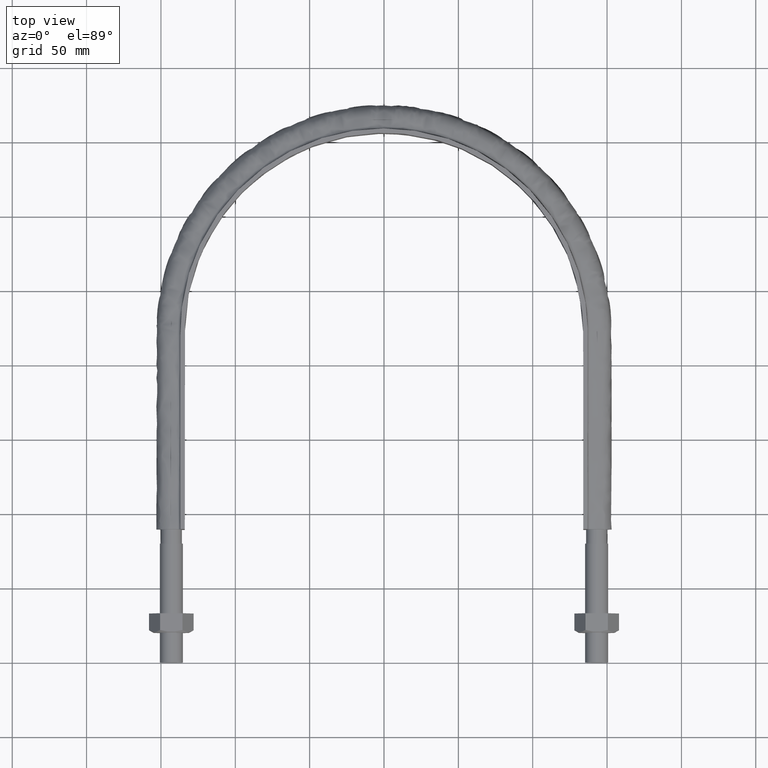
[diagram: clean part render]
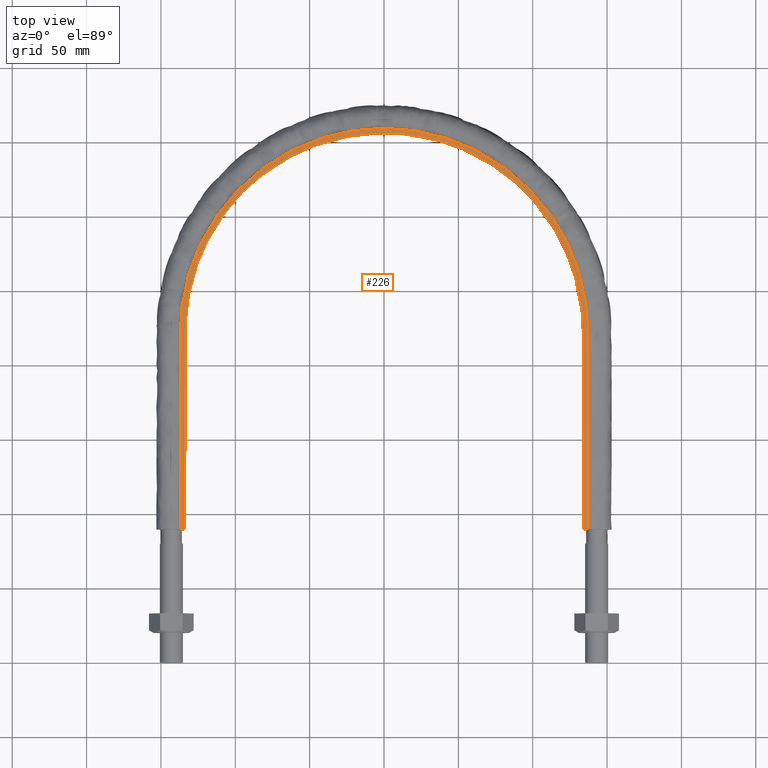
[diagram: same view with one face highlighted and labeled with its STEP entity id]
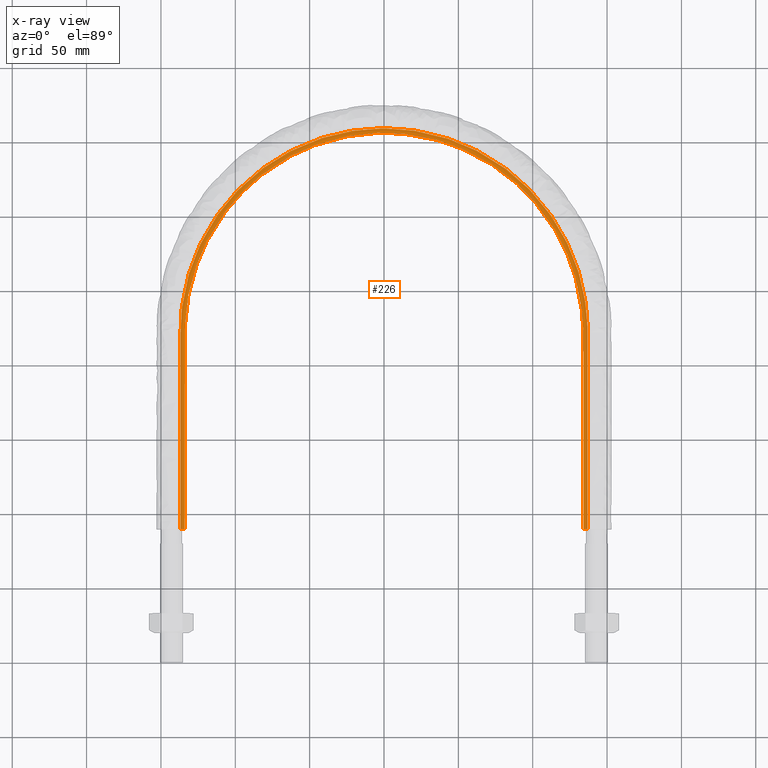
[diagram: x-ray of the same camera — body ghosted, the highlighted face saturated]
A machine part, top view. The second image highlights one B-rep face of the part: STEP entity #226.
The next image is the same camera in x-ray: the body ghosted, the highlighted face saturated — about 0% of this face is hidden behind the body in this view.
In plain terms, the highlighted planar face has unit normal (0, 0, 1).
Its self-contained STEP definition (entity closure, byte-faithful):
#226 = ADVANCED_FACE( '', ( #294 ), #295, .T. );
#294 = FACE_OUTER_BOUND( '', #978, .T. );
#295 = PLANE( '', #979 );
#978 = EDGE_LOOP( '', ( #1721, #1722, #1723, #1724 ) );
#979 = AXIS2_PLACEMENT_3D( '', #1725, #1726, #1727 );
#1721 = ORIENTED_EDGE( '', *, *, #2054, .T. );
#1722 = ORIENTED_EDGE( '', *, *, #2057, .T. );
#1723 = ORIENTED_EDGE( '', *, *, #2061, .T. );
#1724 = ORIENTED_EDGE( '', *, *, #2044, .F. );
#1725 = CARTESIAN_POINT( '', ( 200.000000000000, 489.500000000000, 20.0000000000000 ) );
#1726 = DIRECTION( '', ( 0.000000000000000, 0.000000000000000, 1.00000000000000 ) );
#1727 = DIRECTION( '', ( 1.22460635382238E-016, 1.00000000000000, 0.000000000000000 ) );
#2044 = EDGE_CURVE( '', #2149, #2151, #2152, .T. );
#2054 = EDGE_CURVE( '', #2149, #2167, #2169, .T. );
#2057 = EDGE_CURVE( '', #2167, #2172, #2174, .T. );
#2061 = EDGE_CURVE( '', #2172, #2151, #2179, .T. );
#2149 = VERTEX_POINT( '', #2339 );
#2151 = VERTEX_POINT( '', #2342 );
#2152 = B_SPLINE_CURVE_WITH_KNOTS( '', 3, ( #2343, #2344, #2345, #2346, #2347, #2348, #2349, #2350, #2351, #2352, #2353, #2354, #2355, #2356, #2357, #2358, #2359, #2360, #2361, #2362, #2363, #2364, #2365, #2366, #2367, #2368, #2369, #2370, #2371, #2372, #2373, #2374, #2375, #2376, #2377, #2378, #2379, #2380, #2381, #2382, #2383, #2384, #2385, #2386, #2387, #2388, #2389, #2390, #2391, #2392, #2393, #2394, #2395, #2396, #2397, #2398, #2399, #2400, #2401, #2402, #2403, #2404, #2405, #2406, #2407, #2408, #2409, #2410, #2411, #2412, #2413, #2414, #2415, #2416, #2417, #2418, #2419, #2420, #2421, #2422, #2423, #2424, #2425, #2426, #2427, #2428, #2429, #2430, #2431, #2432, #2433, #2434, #2435, #2436, #2437, #2438, #2439, #2440, #2441, #2442, #2443, #2444, #2445, #2446, #2447, #2448, #2449 ), .UNSPECIFIED., .F., .F., ( 4, 1, 2, 2, 2, 2, 2, 2, 2, 2, 2, 2, 2, 2, 2, 2, 2, 2, 2, 2, 2, 2, 2, 2, 2, 2, 2, 2, 2, 2, 2, 2, 2, 2, 2, 1, 2, 2, 2, 2, 2, 2, 2, 2, 2, 2, 2, 2, 2, 2, 2, 2, 2, 1, 4 ), ( 1.38777878078145E-017, 0.0874256844655862, 0.131138526698379, 0.133870579337929, 0.136602631977478, 0.142066737256577, 0.152994947814775, 0.174851368931171, 0.180315474210270, 0.183047526849820, 0.185779579489369, 0.196707790047568, 0.218564211163964, 0.229492421722162, 0.232224474361711, 0.234956527001261, 0.240420632280360, 0.262277053396756, 0.273205263954954, 0.275937316594503, 0.278669369234053, 0.284133474513152, 0.305989895629548, 0.316918106187746, 0.322382211466845, 0.325114264106394, 0.327846316745944, 0.349702737862340, 0.360630948420538, 0.366095053699637, 0.368827106339186, 0.371559158978736, 0.393415580095132, 0.415272001211528, 0.418004053851078, 0.420736106490627, 0.426200211769726, 0.437128422327925, 0.458984843444321, 0.461716896083871, 0.464448948723420, 0.469913054002519, 0.480841264560717, 0.502697685677114, 0.508161790956213, 0.513625896235312, 0.524554106793510, 0.546410527909907, 0.551874633189007, 0.557338738468106, 0.562802843747205, 0.565534896386755, 0.568266949026304, 0.611979791259098, 0.699405475724685 ), .UNSPECIFIED. );
#2167 = VERTEX_POINT( '', #2737 );
#2169 = LINE( '', #2740, #2741 );
#2172 = VERTEX_POINT( '', #2745 );
#2174 = B_SPLINE_CURVE_WITH_KNOTS( '', 3, ( #2748, #2749, #2750, #2751, #2752, #2753, #2754, #2755, #2756, #2757, #2758, #2759, #2760, #2761, #2762, #2763, #2764 ), .UNSPECIFIED., .F., .F., ( 4, 3, 1, 1, 1, 1, 1, 1, 1, 3, 4 ), ( -10.0000000000000, -9.00000000000000, -8.00000000000000, -7.00000000000000, -6.00000000000000, -5.00000000000000, -4.00000000000000, -3.00000000000000, -2.00000000000000, -1.00000000000000, 0.000000000000000 ), .UNSPECIFIED. );
#2179 = LINE( '', #2796, #2797 );
#2339 = CARTESIAN_POINT( '', ( -136.950000000000, 89.5000000000001, 20.0000000000000 ) );
#2342 = CARTESIAN_POINT( '', ( 136.950000000000, 89.5000000000001, 20.0000000000000 ) );
#2343 = CARTESIAN_POINT( '', ( -136.950000000000, 89.5000000000001, 20.0000000000000 ) );
#2344 = CARTESIAN_POINT( '', ( -136.950000000000, 118.641900248098, 20.0000000000000 ) );
#2345 = CARTESIAN_POINT( '', ( -136.950000000000, 162.354750620245, 20.0000000000000 ) );
#2346 = CARTESIAN_POINT( '', ( -136.950000000000, 206.067600992392, 20.0000000000000 ) );
#2347 = CARTESIAN_POINT( '', ( -136.950000000000, 221.549235499194, 20.0000000000000 ) );
#2348 = CARTESIAN_POINT( '', ( -136.952005766823, 222.459921105959, 20.0000000000000 ) );
#2349 = CARTESIAN_POINT( '', ( -136.934979206279, 224.281279481063, 20.0000000000000 ) );
#2350 = CARTESIAN_POINT( '', ( -136.916553871831, 225.191952619815, 20.0000000000000 ) );
#2351 = CARTESIAN_POINT( '', ( -136.834753701177, 227.923955849787, 20.0000000000000 ) );
#2352 = CARTESIAN_POINT( '', ( -136.743599783762, 229.741272047874, 20.0000000000000 ) );
#2353 = CARTESIAN_POINT( '', ( -136.363495553162, 235.166484778747, 20.0000000000000 ) );
#2354 = CARTESIAN_POINT( '', ( -135.967488703047, 238.753870458487, 20.0000000000000 ) );
#2355 = CARTESIAN_POINT( '', ( -134.367551969831, 249.431038801513, 20.0000000000000 ) );
#2356 = CARTESIAN_POINT( '', ( -132.750553866293, 256.435595074199, 20.0000000000000 ) );
#2357 = CARTESIAN_POINT( '', ( -130.033489035347, 265.047725779318, 20.0000000000000 ) );
#2358 = CARTESIAN_POINT( '', ( -129.454886141075, 266.762891350762, 20.0000000000000 ) );
#2359 = CARTESIAN_POINT( '', ( -128.533317502650, 269.324567410150, 20.0000000000000 ) );
#2360 = CARTESIAN_POINT( '', ( -128.217212893147, 270.176620027556, 20.0000000000000 ) );
#2361 = CARTESIAN_POINT( '', ( -127.566740219217, 271.876957051049, 20.0000000000000 ) );
#2362 = CARTESIAN_POINT( '', ( -127.232398800354, 272.725180838086, 20.0000000000000 ) );
#2363 = CARTESIAN_POINT( '', ( -125.522807242115, 276.937555990544, 20.0000000000000 ) );
#2364 = CARTESIAN_POINT( '', ( -124.027890382198, 280.231015655093, 20.0000000000000 ) );
#2365 = CARTESIAN_POINT( '', ( -119.177772488661, 289.891903517816, 20.0000000000000 ) );
#2366 = CARTESIAN_POINT( '', ( -115.456951462213, 296.039688790403, 20.0000000000000 ) );
#2367 = CARTESIAN_POINT( '', ( -109.152951019669, 304.827169774980, 20.0000000000000 ) );
#2368 = CARTESIAN_POINT( '', ( -106.930050833050, 307.683299996961, 20.0000000000000 ) );
#2369 = CARTESIAN_POINT( '', ( -103.994442146732, 311.159156375520, 20.0000000000000 ) );
#2370 = CARTESIAN_POINT( '', ( -103.399206220778, 311.849830869779, 20.0000000000000 ) );
#2371 = CARTESIAN_POINT( '', ( -102.198265091274, 313.215468669279, 20.0000000000000 ) );
#2372 = CARTESIAN_POINT( '', ( -101.591920700928, 313.891203542522, 20.0000000000000 ) );
#2373 = CARTESIAN_POINT( '', ( -99.7553846231871, 315.897299082133, 20.0000000000000 ) );
#2374 = CARTESIAN_POINT( '', ( -98.5077032633102, 317.206566629290, 20.0000000000000 ) );
#2375 = CARTESIAN_POINT( '', ( -92.1539858602962, 323.613835991371, 20.0000000000000 ) );
#2376 = CARTESIAN_POINT( '', ( -86.7024715106570, 328.295179626362, 20.0000000000000 ) );
#2377 = CARTESIAN_POINT( '', ( -77.9891669345020, 334.670721620165, 20.0000000000000 ) );
#2378 = CARTESIAN_POINT( '', ( -74.9946413234015, 336.687249879651, 20.0000000000000 ) );
#2379 = CARTESIAN_POINT( '', ( -71.1363767592661, 339.069086719335, 20.0000000000000 ) );
#2380 = CARTESIAN_POINT( '', ( -70.3589796436300, 339.538526390098, 20.0000000000000 ) );
#2381 = CARTESIAN_POINT( '', ( -68.7925101038774, 340.463324926288, 20.0000000000000 ) );
#2382 = CARTESIAN_POINT( '', ( -68.0028416365614, 340.918994503192, 20.0000000000000 ) );
#2383 = CARTESIAN_POINT( '', ( -65.6265150792851, 342.258978990775, 20.0000000000000 ) );
#2384 = CARTESIAN_POINT( '', ( -64.0295971988689, 343.118030590872, 20.0000000000000 ) );
#2385 = CARTESIAN_POINT( '', ( -55.9824089667629, 347.244365806941, 20.0000000000000 ) );
#2386 = CARTESIAN_POINT( '', ( -49.3439512001482, 350.003826159950, 20.0000000000000 ) );
#2387 = CARTESIAN_POINT( '', ( -39.0910082444923, 353.346268295591, 20.0000000000000 ) );
#2388 = CARTESIAN_POINT( '', ( -35.6241551653228, 354.327634953127, 20.0000000000000 ) );
#2389 = CARTESIAN_POINT( '', ( -30.3492784457164, 355.598384851550, 20.0000000000000 ) );
#2390 = CARTESIAN_POINT( '', ( -28.5785337099312, 355.988365122305, 20.0000000000000 ) );
#2391 = CARTESIAN_POINT( '', ( -25.9034309357537, 356.522102744638, 20.0000000000000 ) );
#2392 = CARTESIAN_POINT( '', ( -25.0077107435984, 356.691611247169, 20.0000000000000 ) );
#2393 = CARTESIAN_POINT( '', ( -23.2172138820026, 357.012112274079, 20.0000000000000 ) );
#2394 = CARTESIAN_POINT( '', ( -22.3218036874151, 357.163270419116, 20.0000000000000 ) );
#2395 = CARTESIAN_POINT( '', ( -14.2616746941615, 358.442909678169, 20.0000000000000 ) );
#2396 = CARTESIAN_POINT( '', ( -7.08688203430899, 359.005162357812, 20.0000000000000 ) );
#2397 = CARTESIAN_POINT( '', ( 3.69045053045488, 358.997356057590, 20.0000000000000 ) );
#2398 = CARTESIAN_POINT( '', ( 7.28543714269592, 358.851850186394, 20.0000000000000 ) );
#2399 = CARTESIAN_POINT( '', ( 12.6817359396801, 358.418941046074, 20.0000000000000 ) );
#2400 = CARTESIAN_POINT( '', ( 14.4811397915414, 358.238800753868, 20.0000000000000 ) );
#2401 = CARTESIAN_POINT( '', ( 17.1812121944275, 357.914258555029, 20.0000000000000 ) );
#2402 = CARTESIAN_POINT( '', ( 18.0813968219252, 357.797056870436, 20.0000000000000 ) );
#2403 = CARTESIAN_POINT( '', ( 19.8820902819515, 357.544430686408, 20.0000000000000 ) );
#2404 = CARTESIAN_POINT( '', ( 20.7835449490464, 357.408813108140, 20.0000000000000 ) );
#2405 = CARTESIAN_POINT( '', ( 28.8670965883872, 356.111328549363, 20.0000000000000 ) );
#2406 = CARTESIAN_POINT( '', ( 35.8703135521031, 354.406800400230, 20.0000000000000 ) );
#2407 = CARTESIAN_POINT( '', ( 49.5251538415595, 349.933849723642, 20.0000000000000 ) );
#2408 = CARTESIAN_POINT( '', ( 56.1748232267885, 347.159514727640, 20.0000000000000 ) );
#2409 = CARTESIAN_POINT( '', ( 63.4492399728133, 343.413652350477, 20.0000000000000 ) );
#2410 = CARTESIAN_POINT( '', ( 64.2555412528555, 342.988297906809, 20.0000000000000 ) );
#2411 = CARTESIAN_POINT( '', ( 65.8566175141683, 342.123190874314, 20.0000000000000 ) );
#2412 = CARTESIAN_POINT( '', ( 68.2414579243044, 340.803750954358, 20.0000000000000 ) );
#2413 = CARTESIAN_POINT( '', ( 70.5763589403797, 339.419469626307, 20.0000000000000 ) );
#2414 = CARTESIAN_POINT( '', ( 75.1805857318975, 336.565763947974, 20.0000000000000 ) );
#2415 = CARTESIAN_POINT( '', ( 78.1627035340855, 334.549856366448, 20.0000000000000 ) );
#2416 = CARTESIAN_POINT( '', ( 86.8543207620436, 328.171383663364, 20.0000000000000 ) );
#2417 = CARTESIAN_POINT( '', ( 92.3077229888418, 323.476301431762, 20.0000000000000 ) );
#2418 = CARTESIAN_POINT( '', ( 98.0418417248439, 317.673728261723, 20.0000000000000 ) );
#2419 = CARTESIAN_POINT( '', ( 98.6733697505321, 317.021731690659, 20.0000000000000 ) );
#2420 = CARTESIAN_POINT( '', ( 99.9251833237789, 315.703141292676, 20.0000000000000 ) );
#2421 = CARTESIAN_POINT( '', ( 100.546136743139, 315.035752086234, 20.0000000000000 ) );
#2422 = CARTESIAN_POINT( '', ( 102.386046552860, 313.018007311465, 20.0000000000000 ) );
#2423 = CARTESIAN_POINT( '', ( 103.581668710418, 311.652670943034, 20.0000000000000 ) );
#2424 = CARTESIAN_POINT( '', ( 107.077810366198, 307.497593093915, 20.0000000000000 ) );
#2425 = CARTESIAN_POINT( '', ( 109.287409665407, 304.648655660805, 20.0000000000000 ) );
#2426 = CARTESIAN_POINT( '', ( 115.563663674955, 295.872310524424, 20.0000000000000 ) );
#2427 = CARTESIAN_POINT( '', ( 119.278439319531, 289.715802833901, 20.0000000000000 ) );
#2428 = CARTESIAN_POINT( '', ( 123.322162064000, 281.629687512515, 20.0000000000000 ) );
#2429 = CARTESIAN_POINT( '', ( 124.100657851931, 279.992770208298, 20.0000000000000 ) );
#2430 = CARTESIAN_POINT( '', ( 125.595826737253, 276.678684334606, 20.0000000000000 ) );
#2431 = CARTESIAN_POINT( '', ( 126.312684101757, 275.000403133008, 20.0000000000000 ) );
#2432 = CARTESIAN_POINT( '', ( 128.350441665648, 269.950404788999, 20.0000000000000 ) );
#2433 = CARTESIAN_POINT( '', ( 129.565681668818, 266.548771227831, 20.0000000000000 ) );
#2434 = CARTESIAN_POINT( '', ( 132.799201309554, 256.243261059042, 20.0000000000000 ) );
#2435 = CARTESIAN_POINT( '', ( 134.406489655849, 249.239070076658, 20.0000000000000 ) );
#2436 = CARTESIAN_POINT( '', ( 135.730368078419, 240.316580552517, 20.0000000000000 ) );
#2437 = CARTESIAN_POINT( '', ( 135.960596827439, 238.523650463583, 20.0000000000000 ) );
#2438 = CARTESIAN_POINT( '', ( 136.350715609652, 234.920622076923, 20.0000000000000 ) );
#2439 = CARTESIAN_POINT( '', ( 136.510773884774, 233.109390090212, 20.0000000000000 ) );
#2440 = CARTESIAN_POINT( '', ( 136.758613068843, 229.474281669827, 20.0000000000000 ) );
#2441 = CARTESIAN_POINT( '', ( 136.846031799769, 227.656639207714, 20.0000000000000 ) );
#2442 = CARTESIAN_POINT( '', ( 136.922369077726, 224.930043041096, 20.0000000000000 ) );
#2443 = CARTESIAN_POINT( '', ( 136.939052762000, 224.021156467244, 20.0000000000000 ) );
#2444 = CARTESIAN_POINT( '', ( 136.951967908155, 222.203333870081, 20.0000000000000 ) );
#2445 = CARTESIAN_POINT( '', ( 136.950000000000, 221.294402200339, 20.0000000000000 ) );
#2446 = CARTESIAN_POINT( '', ( 136.950000000000, 205.842644700988, 20.0000000000000 ) );
#2447 = CARTESIAN_POINT( '', ( 136.950000000000, 162.214152938118, 20.0000000000000 ) );
#2448 = CARTESIAN_POINT( '', ( 136.950000000000, 118.585661175247, 20.0000000000000 ) );
#2449 = CARTESIAN_POINT( '', ( 136.950000000000, 89.4999999999999, 20.0000000000000 ) );
#2737 = CARTESIAN_POINT( '', ( -133.950000000000, 89.5000000000001, 20.0000000000000 ) );
#2740 = CARTESIAN_POINT( '', ( -200.000000000000, 89.5000000000001, 20.0000000000000 ) );
#2741 = VECTOR( '', #3147, 1000.00000000000 );
#2745 = CARTESIAN_POINT( '', ( 133.950000000000, 89.5000000000001, 20.0000000000000 ) );
#2748 = CARTESIAN_POINT( '', ( -133.950000000000, 89.5000000000001, 20.0000000000001 ) );
#2749 = CARTESIAN_POINT( '', ( -133.950000000000, 133.683333333333, 20.0000000000001 ) );
#2750 = CARTESIAN_POINT( '', ( -133.950000000000, 177.866666666667, 20.0000000000001 ) );
#2751 = CARTESIAN_POINT( '', ( -133.950000000000, 222.050000000000, 20.0000000000001 ) );
#2752 = CARTESIAN_POINT( '', ( -133.950000000000, 239.566032700257, 20.0000000000001 ) );
#2753 = CARTESIAN_POINT( '', ( -126.975474198415, 274.652216480459, 20.0000000000001 ) );
#2754 = CARTESIAN_POINT( '', ( -97.1828205848687, 319.230867859828, 20.0000000000001 ) );
#2755 = CARTESIAN_POINT( '', ( -52.5949635017385, 349.026032119855, 20.0000000000001 ) );
#2756 = CARTESIAN_POINT( '', ( 9.95341556962034E-014, 359.486983940073, 20.0000000000001 ) );
#2757 = CARTESIAN_POINT( '', ( 52.5949635017385, 349.026032119855, 20.0000000000001 ) );
#2758 = CARTESIAN_POINT( '', ( 97.1828205848688, 319.230867859828, 20.0000000000001 ) );
#2759 = CARTESIAN_POINT( '', ( 126.975474198415, 274.652216480460, 20.0000000000001 ) );
#2760 = CARTESIAN_POINT( '', ( 133.950000000000, 239.566032700257, 20.0000000000001 ) );
#2761 = CARTESIAN_POINT( '', ( 133.950000000000, 222.050000000000, 20.0000000000001 ) );
#2762 = CARTESIAN_POINT( '', ( 133.950000000000, 177.866666666667, 20.0000000000001 ) );
#2763 = CARTESIAN_POINT( '', ( 133.950000000000, 133.683333333333, 20.0000000000001 ) );
#2764 = CARTESIAN_POINT( '', ( 133.950000000000, 89.5000000000000, 20.0000000000001 ) );
#2796 = CARTESIAN_POINT( '', ( -200.000000000000, 89.5000000000001, 20.0000000000000 ) );
#2797 = VECTOR( '', #3151, 1000.00000000000 );
#3147 = DIRECTION( '', ( 1.00000000000000, -1.22460635382238E-016, 0.000000000000000 ) );
#3151 = DIRECTION( '', ( 1.00000000000000, -1.22460635382238E-016, 0.000000000000000 ) );